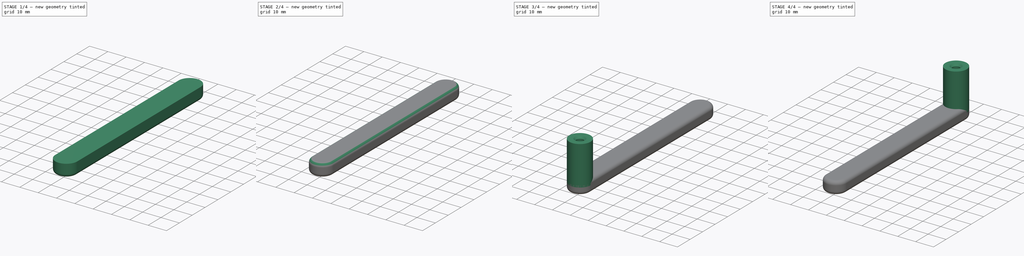
[diagram: build sequence overview — one tinted view per stage of 4, left to right]
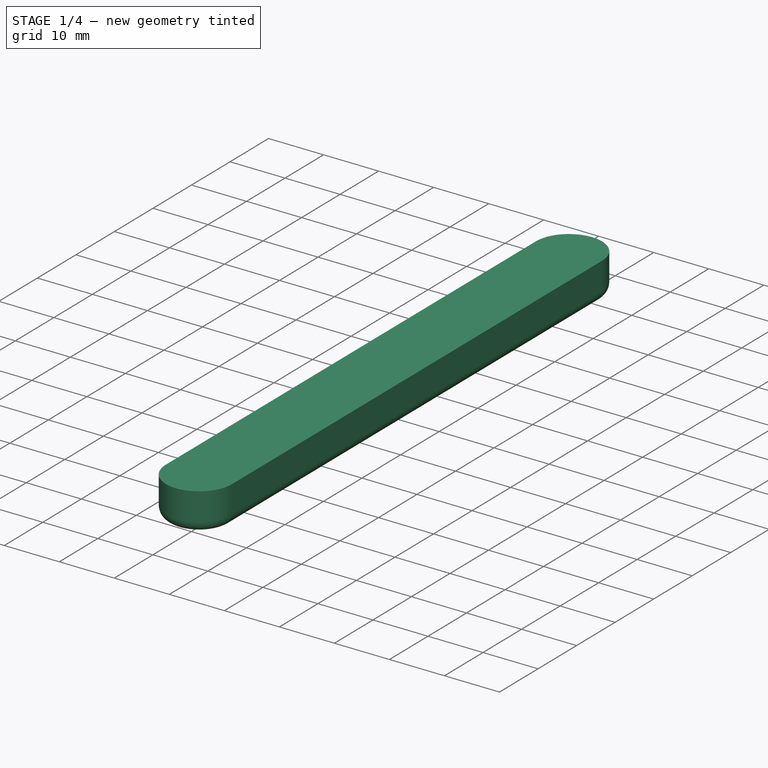
[diagram: stage 1 of 4 — iso view after this stage's code; geometry added in this stage tinted green]
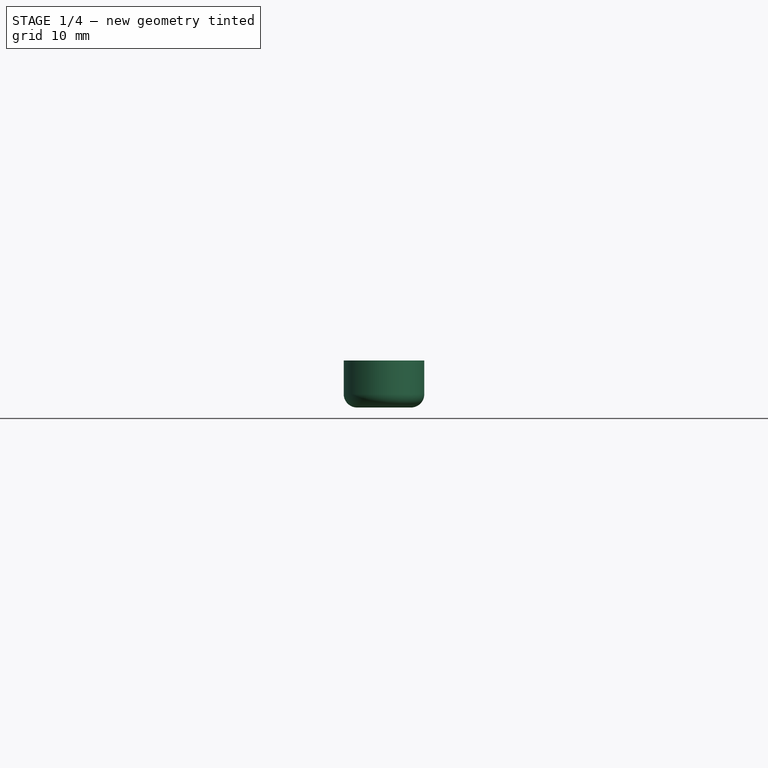
[diagram: stage 1 of 4 — front view after this stage's code; geometry added in this stage tinted green]
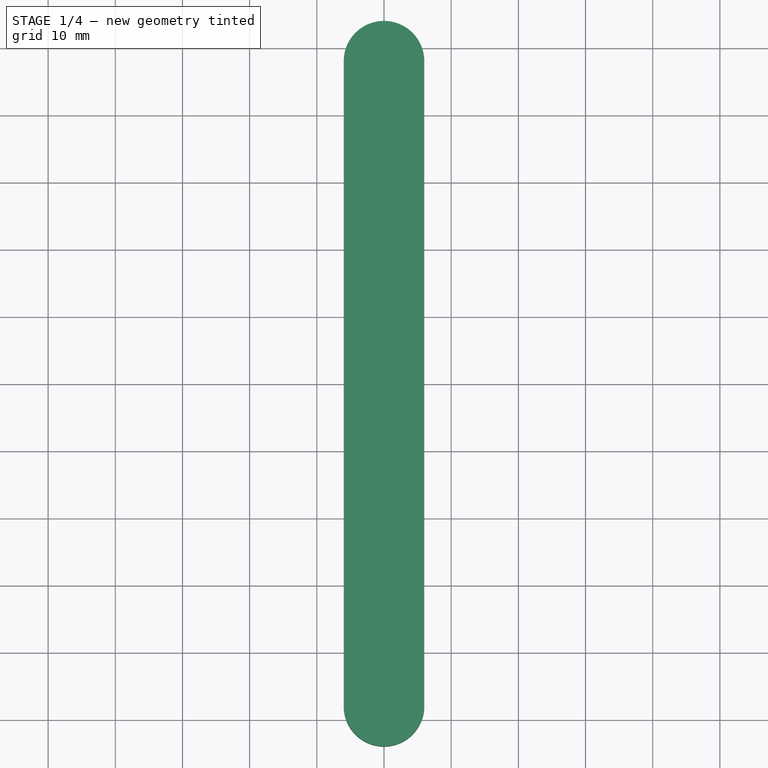
[diagram: stage 1 of 4 — top view after this stage's code; geometry added in this stage tinted green]
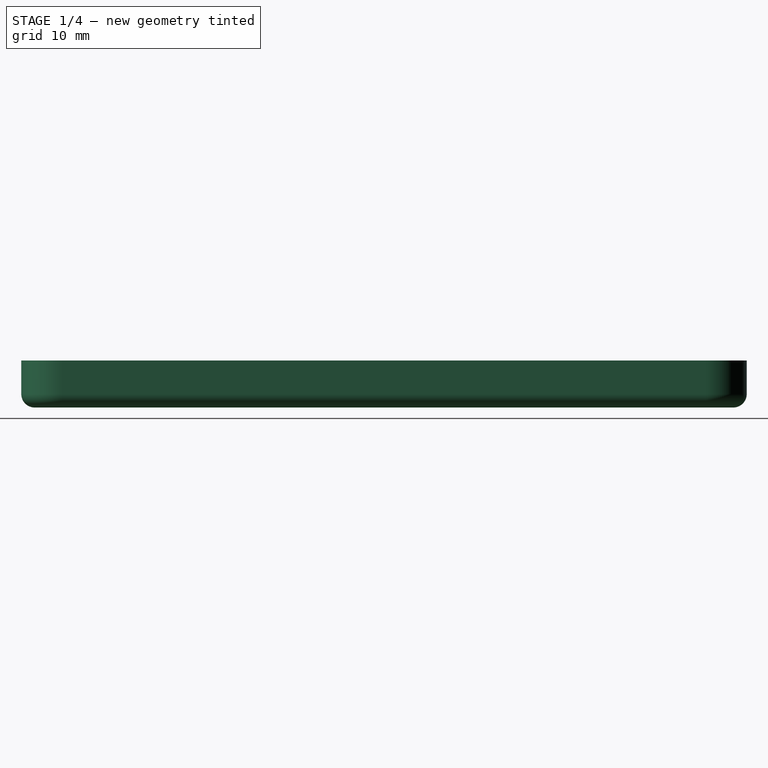
[diagram: stage 1 of 4 — right view after this stage's code; geometry added in this stage tinted green]
FCSTD DOCUMENT  (FreeCAD 0.20R29603 (Git))
Label: handle2
License: All rights reserved
LicenseURL: http://en.wikipedia.org/wiki/All_rights_reserved
objects: PartDesign::Body×4, PartDesign::FeatureBase×3, Sketcher::SketchObject×2, Part::Extrusion×2, Part::Fillet×2, PartDesign::Hole×1, Part::Mirroring×1
note: 16 computed .brp shape members not serialized (recipe doc carries the construction recipe); baked Part::Feature solids carry a one-line shape summary decoded from their .brp

FEATURE [Sketcher::SketchObject] Sketch  label="handle2_base"
  FullyConstrained = true
  expr: Constraints[4] = .Constraints.pole_diameter
  expr: Constraints[5] = .Constraints.center_distance_pole
  sketch-geometry (6):
    g0: Circle CenterX=0 CenterY=-48 CenterZ=0 NormalX=0 NormalY=0 NormalZ=1 AngleXU=0 Radius=6
    g1: Circle CenterX=0 CenterY=48 CenterZ=0 NormalX=0 NormalY=0 NormalZ=1 AngleXU=0 Radius=6
    g2: ArcOfCircle CenterX=0 CenterY=-48 CenterZ=0 NormalX=0 NormalY=0 NormalZ=1 AngleXU=0 Radius=6 StartAngle=3.14159 EndAngle=6.28319
    g3: ArcOfCircle CenterX=0 CenterY=48 CenterZ=0 NormalX=0 NormalY=0 NormalZ=1 AngleXU=0 Radius=6 StartAngle=0 EndAngle=3.14159
    g4: LineSegment StartX=6 StartY=48 StartZ=0 EndX=6 EndY=-48 EndZ=0
    g5: LineSegment StartX=-6 StartY=-48 StartZ=0 EndX=-6 EndY=48 EndZ=0
  constraints (18):
    c: PointOnObject(g0,g-2)
    c: DistanceY(g0,g-1) = 48  'center_distance_pole'
    c: Diameter(g0) = 12  'pole_diameter'
    c: PointOnObject(g1,g-2)
    c: Diameter(g1) = 12
    c: DistanceY(g-1,g1) = 48
    c: Coincident(g2,g0)
    c: PointOnObject(g2,g0)
    c: Horizontal(g2,g2)
    c: Coincident(g3,g1)
    c: PointOnObject(g3,g1)
    c: Horizontal(g3,g3)
    c: Horizontal(g3,g3)
    c: Horizontal(g2,g2)
    c: Coincident(g4,g3)
    c: Coincident(g4,g2)
    c: Coincident(g5,g2)
    c: Coincident(g5,g3)
FEATURE [Part::Extrusion] Extrude
  Base = -> Sketch
  Dir = (0,0,1)
  DirMode = 2
  FaceMakerClass = Part::FaceMakerBullseye
  LengthFwd = 0
  LengthRev = 7
  Solid = true
  Symmetric = false
FEATURE [Part::Fillet] Fillet
  Base = -> Extrude
  Edges = 4 edges r=2: [Edge3,Edge6,Edge9,Edge11]
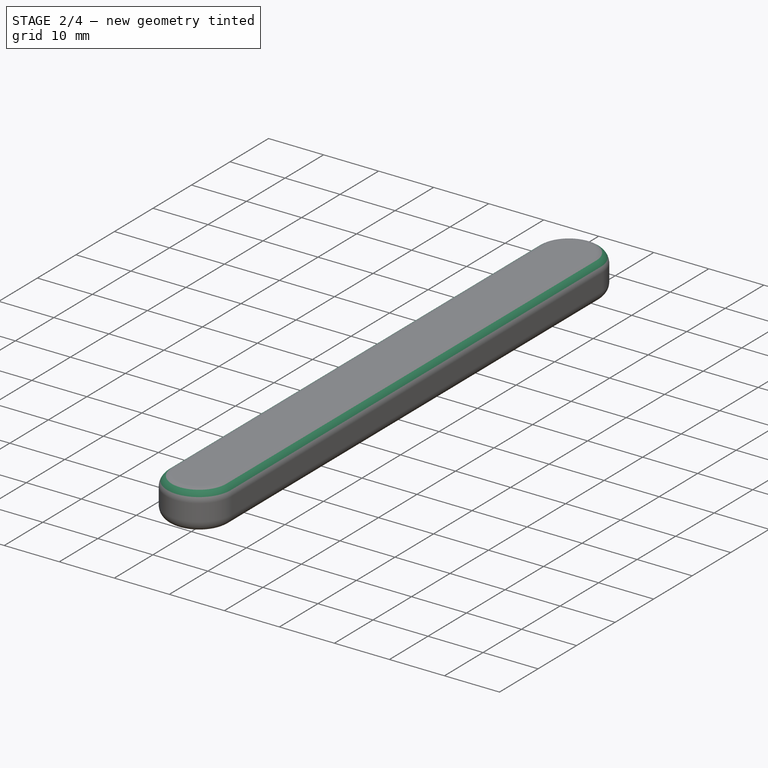
[diagram: stage 2 of 4 — iso view after this stage's code; geometry added in this stage tinted green]
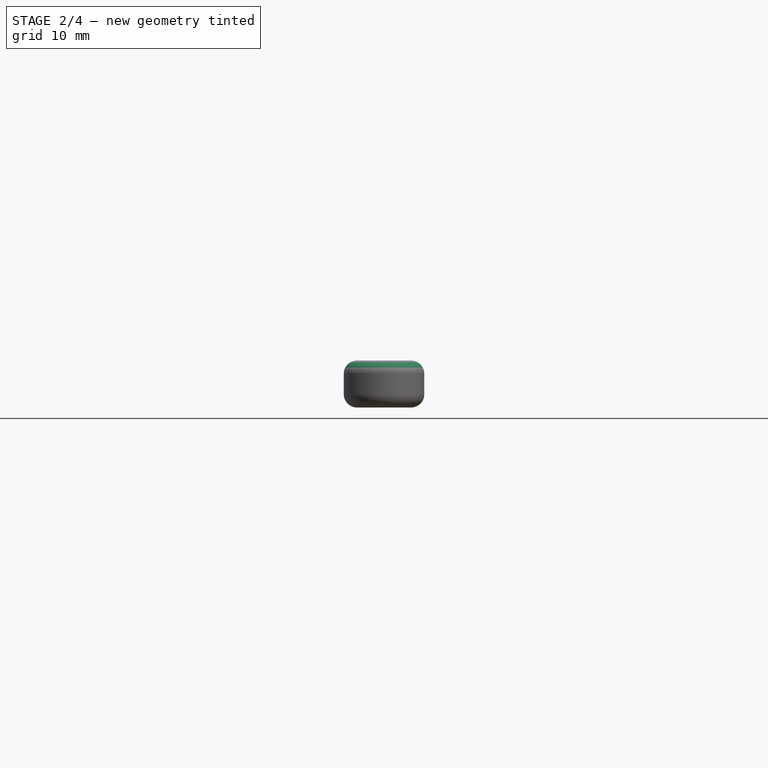
[diagram: stage 2 of 4 — front view after this stage's code; geometry added in this stage tinted green]
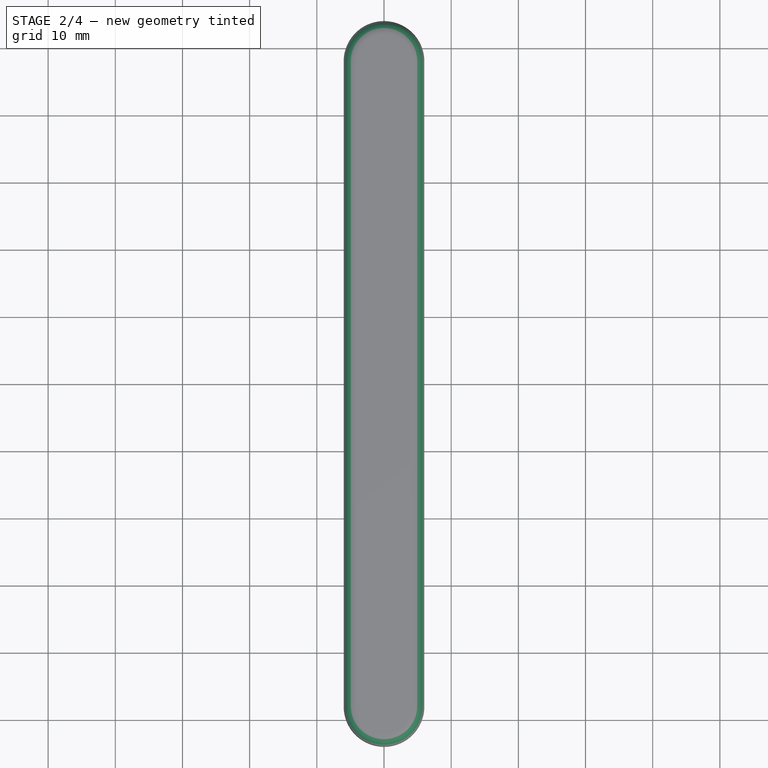
[diagram: stage 2 of 4 — top view after this stage's code; geometry added in this stage tinted green]
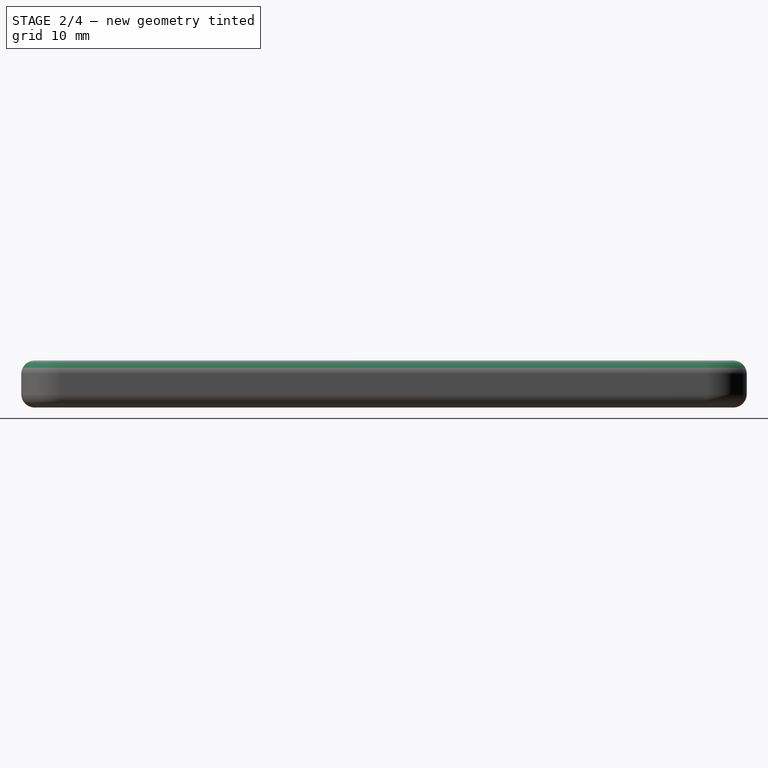
[diagram: stage 2 of 4 — right view after this stage's code; geometry added in this stage tinted green]
FEATURE [Part::Fillet] Fillet001
  Base = -> Fillet
  Edges = 2 edges r=2: [Edge5,Edge11]
FEATURE [PartDesign::Body] Body002  label="BodyPole2"
  BaseFeature = -> Part__Mirroring
  Group = -> [BaseFeature001]
  Origin = -> Origin002
  Tip = -> BaseFeature001
FEATURE [PartDesign::FeatureBase] BaseFeature002
  BaseFeature = -> Fillet001
FEATURE [PartDesign::Body] Body003  label="BodyGrip"
  BaseFeature = -> Fillet001
  Group = -> [BaseFeature002]
  Origin = -> Origin003
  Tip = -> BaseFeature002
FEATURE [PartDesign::Body] Body
  Group = -> [Sketch]
  Origin = -> Origin
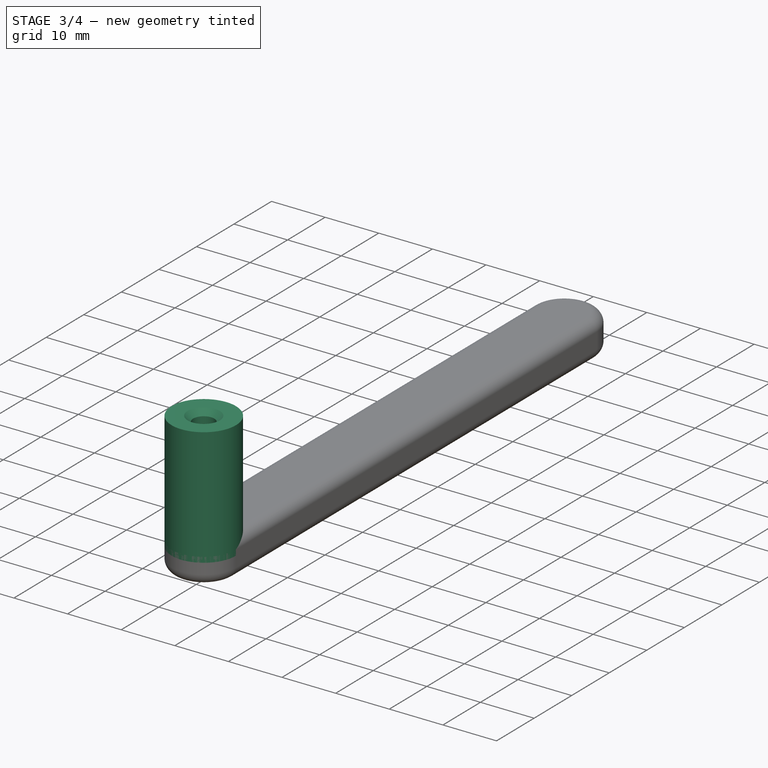
[diagram: stage 3 of 4 — iso view after this stage's code; geometry added in this stage tinted green]
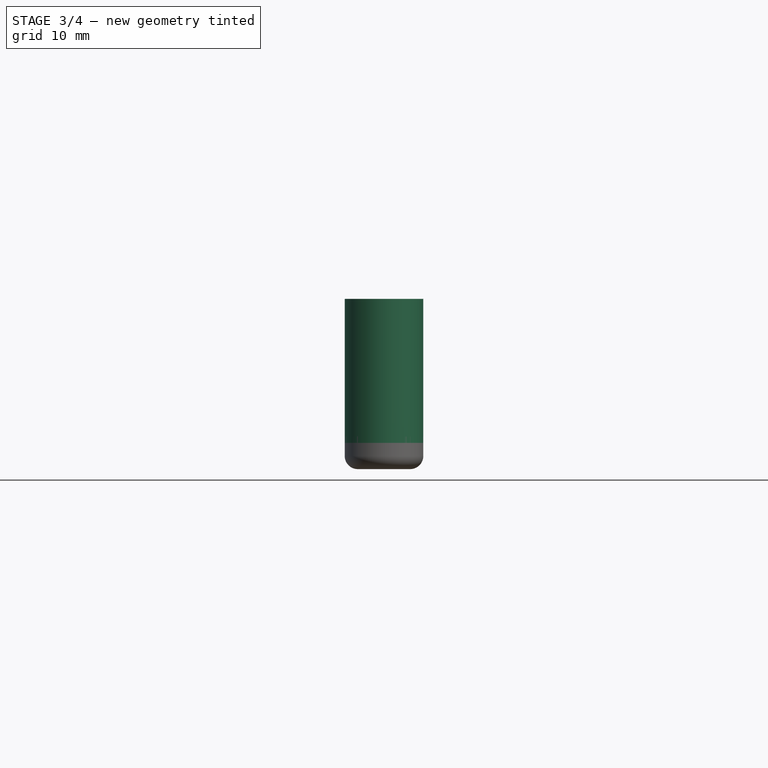
[diagram: stage 3 of 4 — front view after this stage's code; geometry added in this stage tinted green]
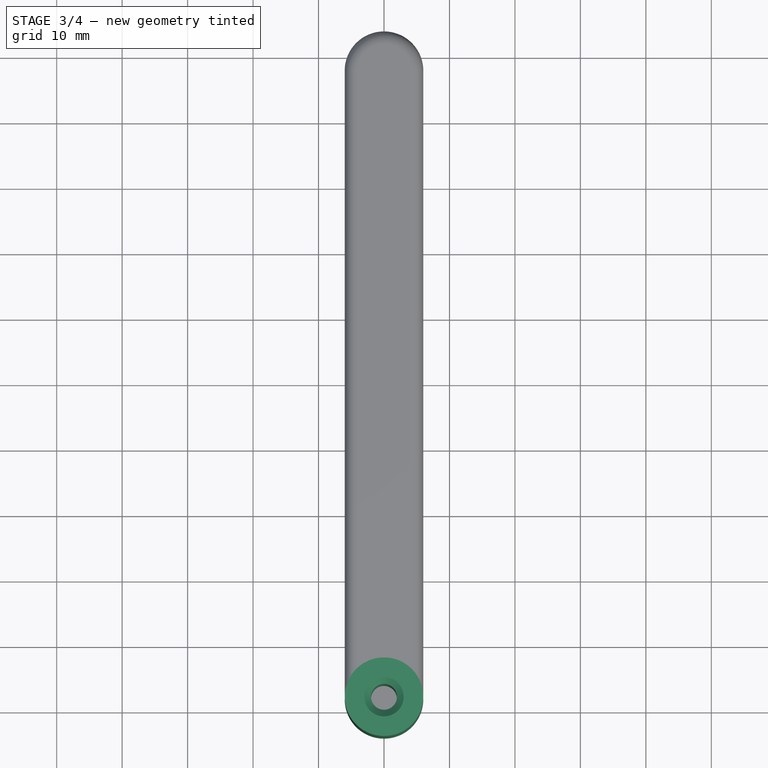
[diagram: stage 3 of 4 — top view after this stage's code; geometry added in this stage tinted green]
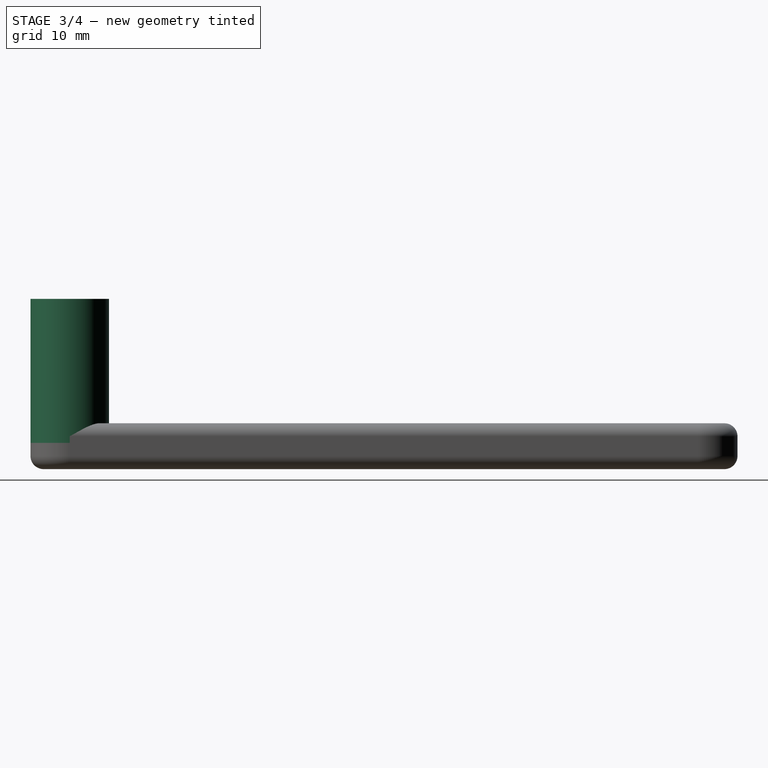
[diagram: stage 3 of 4 — right view after this stage's code; geometry added in this stage tinted green]
FEATURE [Sketcher::SketchObject] Sketch001
  ExternalGeometry = -> [Extrude]
  FullyConstrained = true
  MapMode = 5
  Support = -> [Extrude]
  sketch-geometry (1):
    g0: Circle CenterX=0 CenterY=-48 CenterZ=0 NormalX=0 NormalY=0 NormalZ=1 AngleXU=0 Radius=6
  constraints (3):
    c: Coincident(g0,g-3)
    c: PointOnObject(g-3,g0)
    c: Distance(g0,g-3) = 6
FEATURE [Part::Extrusion] Extrude001  label="pole1"
  Base = -> Sketch001
  Dir = (0,0,1)
  DirMode = 2
  FaceMakerClass = Part::FaceMakerBullseye
  LengthFwd = 19
  LengthRev = 3
  Solid = true
  Symmetric = false
FEATURE [PartDesign::FeatureBase] BaseFeature  label="B"
  BaseFeature = -> Extrude001
FEATURE [PartDesign::Hole] Hole
  BaseFeature = -> BaseFeature
  CustomThreadClearance = 0
  Depth = 25
  DepthType = 0
  Diameter = 3.95
  DrillForDepth = false
  DrillPoint = 1
  DrillPointAngle = 118
  HoleCutCountersinkAngle = 90
  HoleCutCustomValues = false
  HoleCutDepth = 0
  HoleCutDiameter = 6
  HoleCutType = 2
  ModelThread = false
  Profile = -> BaseFeature [Face3]
  Tapered = false
  TaperedAngle = 90
  ThreadClass = 0
  ThreadDepth = 25
  ThreadDepthType = 0
  ThreadDirection = 0
  ThreadFit = 0
  ThreadSize = 0
  ThreadType = 0
  Threaded = false
  UseCustomThreadClearance = false
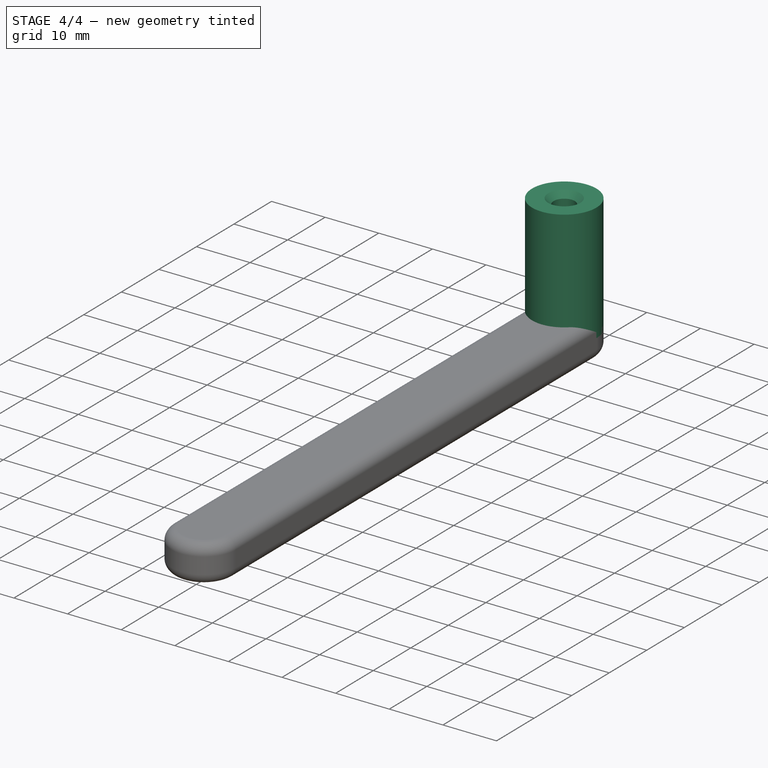
[diagram: stage 4 of 4 — iso view after this stage's code; geometry added in this stage tinted green]
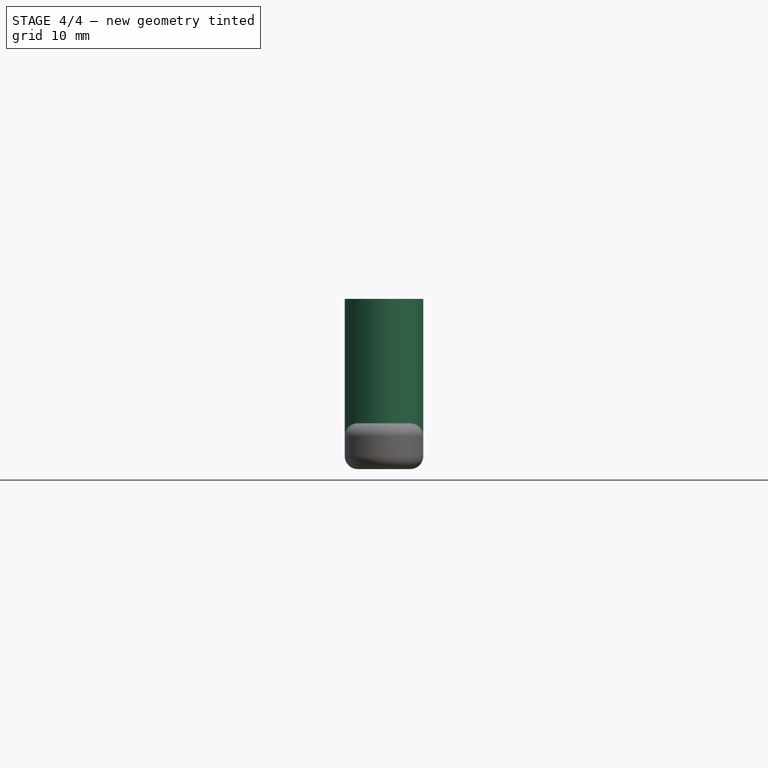
[diagram: stage 4 of 4 — front view after this stage's code; geometry added in this stage tinted green]
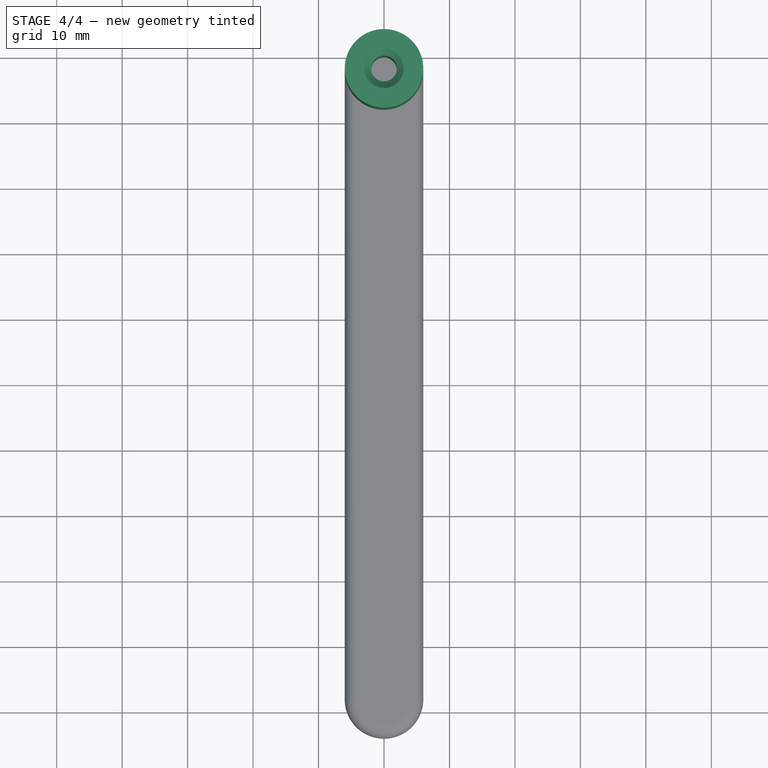
[diagram: stage 4 of 4 — top view after this stage's code; geometry added in this stage tinted green]
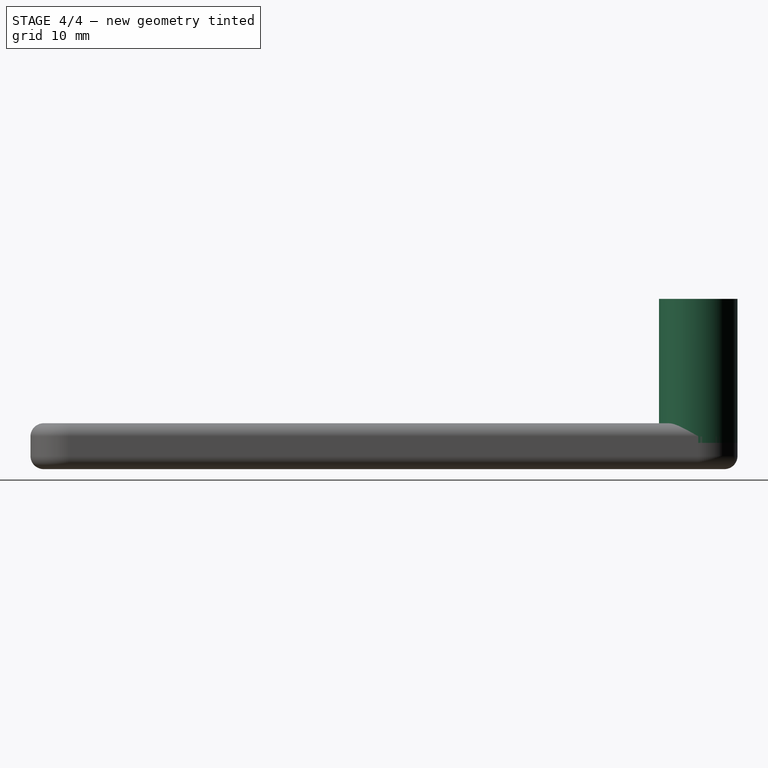
[diagram: stage 4 of 4 — right view after this stage's code; geometry added in this stage tinted green]
FEATURE [PartDesign::Body] Body001  label="BodyPole1"
  BaseFeature = -> Extrude001
  Group = -> [BaseFeature,Hole]
  Origin = -> Origin001
  Tip = -> Hole
FEATURE [Part::Mirroring] Part__Mirroring  label="Body001 (Mirror #1)"
  Base = (0,0,0)
  Normal = (0,1,0)
  Source = -> Body001
FEATURE [PartDesign::FeatureBase] BaseFeature001
  BaseFeature = -> Part__Mirroring
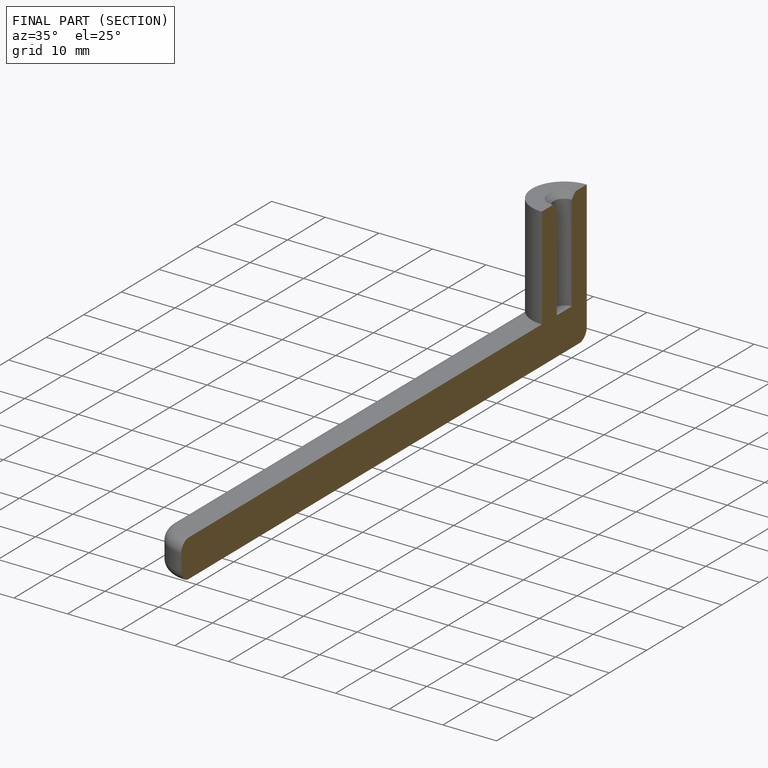
[diagram: finished part — half-section view (interior)]
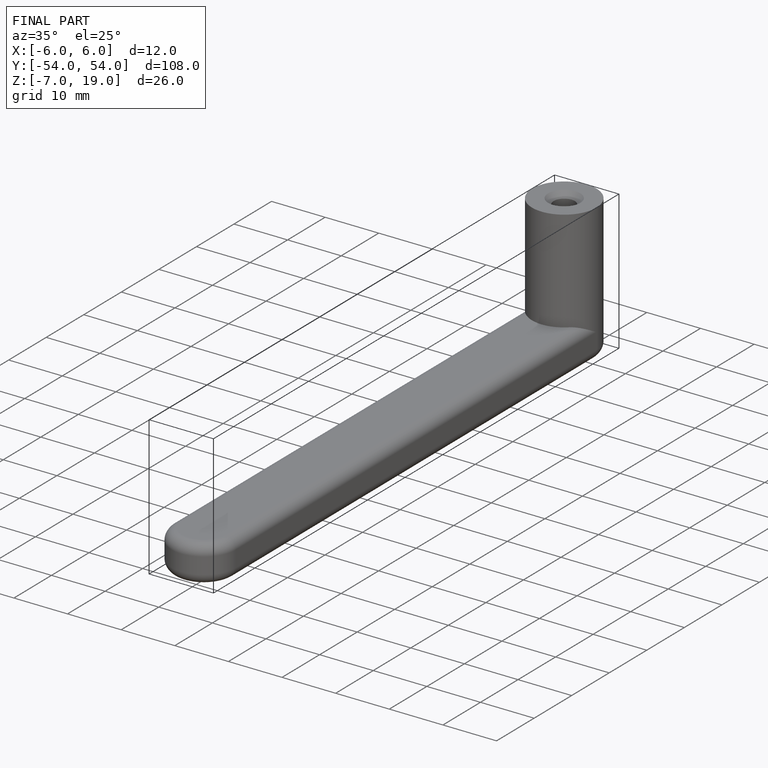
[diagram: finished part — iso view with bounding-box wireframe]
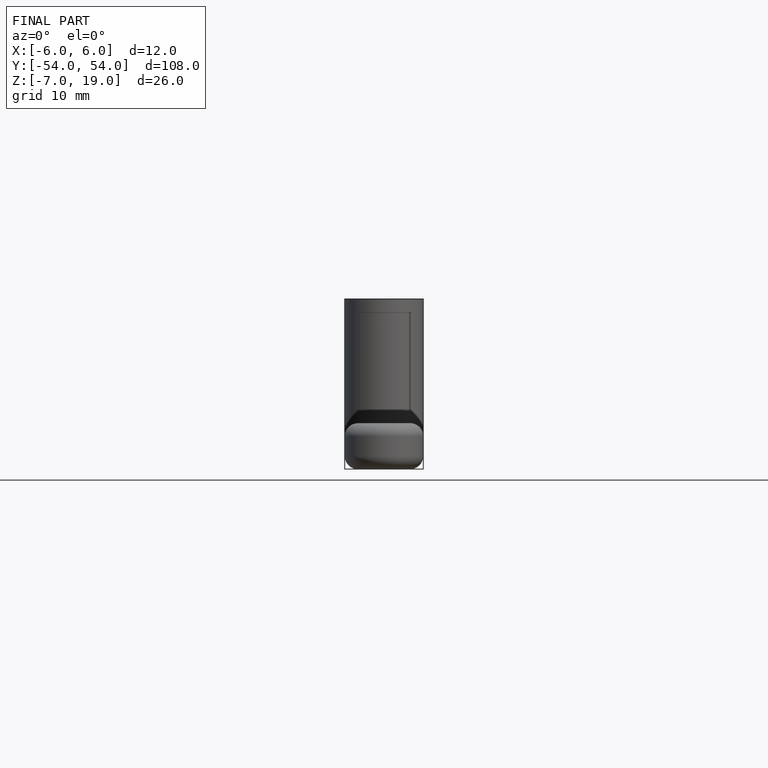
[diagram: finished part — front view with bounding-box wireframe]
